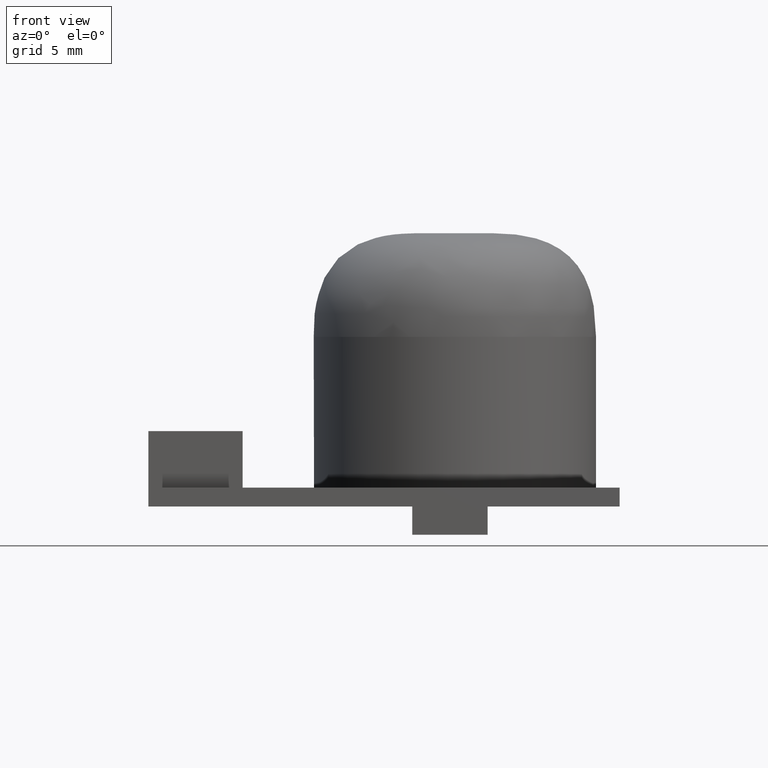
[diagram: clean part render]
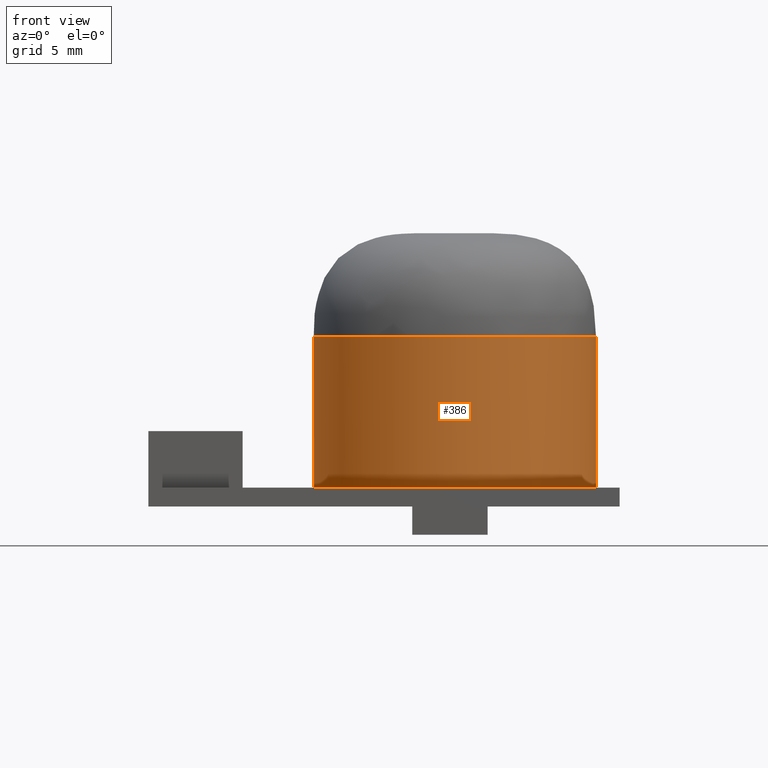
[diagram: same view with one face highlighted and labeled with its STEP entity id]
A machine part, front view. The second image highlights one B-rep face of the part: STEP entity #386.
In plain terms, the highlighted cylindrical surface (bore or boss wall) has radius 7.5 mm, axis along (0, 0, 1).
Its self-contained STEP definition (entity closure, byte-faithful):
#24=CIRCLE('',#421,7.5);
#33=LINE('',#697,#74);
#74=VECTOR('',#454,7.5);
#115=CYLINDRICAL_SURFACE('',#420,7.5);
#137=FACE_OUTER_BOUND('',#158,.T.);
#158=EDGE_LOOP('',(#282,#283,#284,#285));
#188=B_SPLINE_CURVE_WITH_KNOTS('',3,(#677,#678,#679,#680,#681,#682,#683,
#684,#685,#686,#687,#688,#689,#690,#691,#692,#693),.UNSPECIFIED.,.T.,.F.,
(4,1,1,1,1,1,1,1,1,1,1,1,1,1,4),(-1.25099610281145,-1.16163923832491,-1.07228237383838,
-0.98292550935185,-0.893568644865318,-0.804211780378786,-0.714854915892254,
-0.655283672901233,-0.536141186919191,-0.47656994392817,-0.357427457946127,
-0.268070593459595,-0.178713728973064,-0.0893568644865318,0.),
 .UNSPECIFIED.);
#189=VERTEX_POINT('',#652);
#191=VERTEX_POINT('',#696);
#226=EDGE_CURVE('',#189,#189,#188,.T.);
#227=EDGE_CURVE('',#189,#191,#33,.T.);
#228=EDGE_CURVE('',#191,#191,#24,.T.);
#282=ORIENTED_EDGE('',*,*,#226,.F.);
#283=ORIENTED_EDGE('',*,*,#227,.T.);
#284=ORIENTED_EDGE('',*,*,#228,.F.);
#285=ORIENTED_EDGE('',*,*,#227,.F.);
#386=ADVANCED_FACE('',(#137),#115,.T.);
#420=AXIS2_PLACEMENT_3D('',#695,#452,#453);
#421=AXIS2_PLACEMENT_3D('',#698,#455,#456);
#452=DIRECTION('center_axis',(0.,0.,1.));
#453=DIRECTION('ref_axis',(-1.,0.,0.));
#454=DIRECTION('',(0.,0.,-1.));
#455=DIRECTION('center_axis',(0.,0.,-1.));
#456=DIRECTION('ref_axis',(-1.,0.,0.));
#652=CARTESIAN_POINT('',(23.75,12.4999999999976,9.00012345593103));
#677=CARTESIAN_POINT('Ctrl Pts',(23.75,12.4999999999976,9.00012345593103));
#678=CARTESIAN_POINT('Ctrl Pts',(23.75,13.621991944559,9.00012345593103));
#679=CARTESIAN_POINT('Ctrl Pts',(23.2380933332563,15.8651513393549,9.00012345593103));
#680=CARTESIAN_POINT('Ctrl Pts',(21.0865112150804,18.5649217446474,9.00012345593103));
#681=CARTESIAN_POINT('Ctrl Pts',(17.9757870793582,20.0614658012309,9.00012345593103));
#682=CARTESIAN_POINT('Ctrl Pts',(14.5251208196525,20.0617864158509,9.00012345593103));
#683=CARTESIAN_POINT('Ctrl Pts',(11.413680117459,18.5637103178407,9.00012345593103));
#684=CARTESIAN_POINT('Ctrl Pts',(9.50328421254499,16.1657551917326,9.00012345593104));
#685=CARTESIAN_POINT('Ctrl Pts',(8.49635530641897,12.9105727209406,9.00012345593104));
#686=CARTESIAN_POINT('Ctrl Pts',(8.96000188061562,9.82300813379407,9.00012345593104));
#687=CARTESIAN_POINT('Ctrl Pts',(11.0939514149011,6.69289646328218,9.00012345593104));
#688=CARTESIAN_POINT('Ctrl Pts',(14.1367345242791,4.934004193647,9.00012345593104));
#689=CARTESIAN_POINT('Ctrl Pts',(17.9769990239515,4.9399435090646,9.00012345593104));
#690=CARTESIAN_POINT('Ctrl Pts',(21.0848338404302,6.43494103360139,9.00012345593103));
#691=CARTESIAN_POINT('Ctrl Pts',(23.2384415317119,9.13521332492933,9.00012345593103));
#692=CARTESIAN_POINT('Ctrl Pts',(23.75,11.3780080554362,9.00012345593103));
#693=CARTESIAN_POINT('Ctrl Pts',(23.75,12.4999999999976,9.00012345593103));
#695=CARTESIAN_POINT('Origin',(16.25,12.4999999999976,1.));
#696=CARTESIAN_POINT('',(23.75,12.4999999999976,1.));
#697=CARTESIAN_POINT('',(23.75,12.4999999999976,1.));
#698=CARTESIAN_POINT('Origin',(16.25,12.4999999999976,1.));